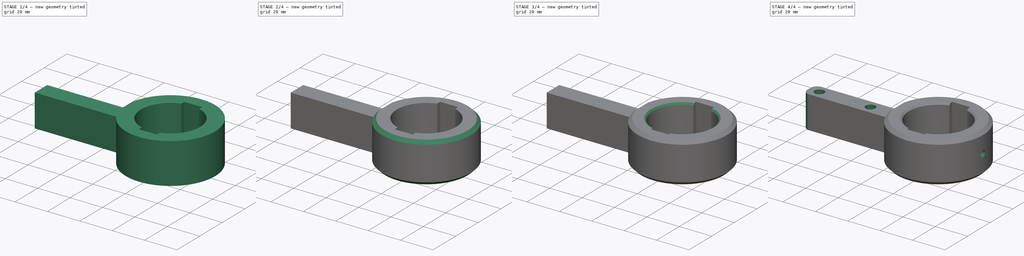
[diagram: build sequence overview — one tinted view per stage of 4, left to right]
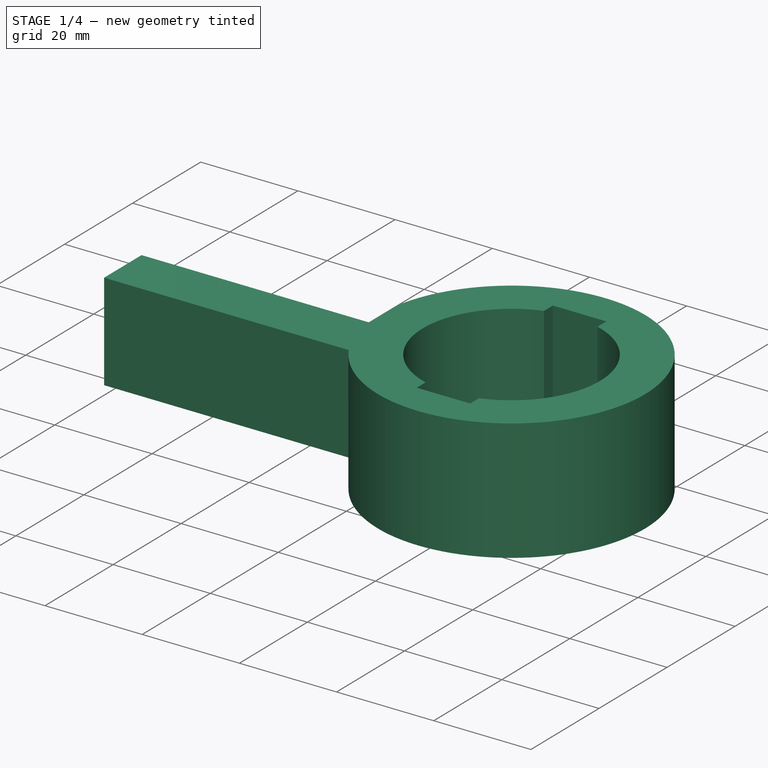
[diagram: stage 1 of 4 — iso view after this stage's code; geometry added in this stage tinted green]
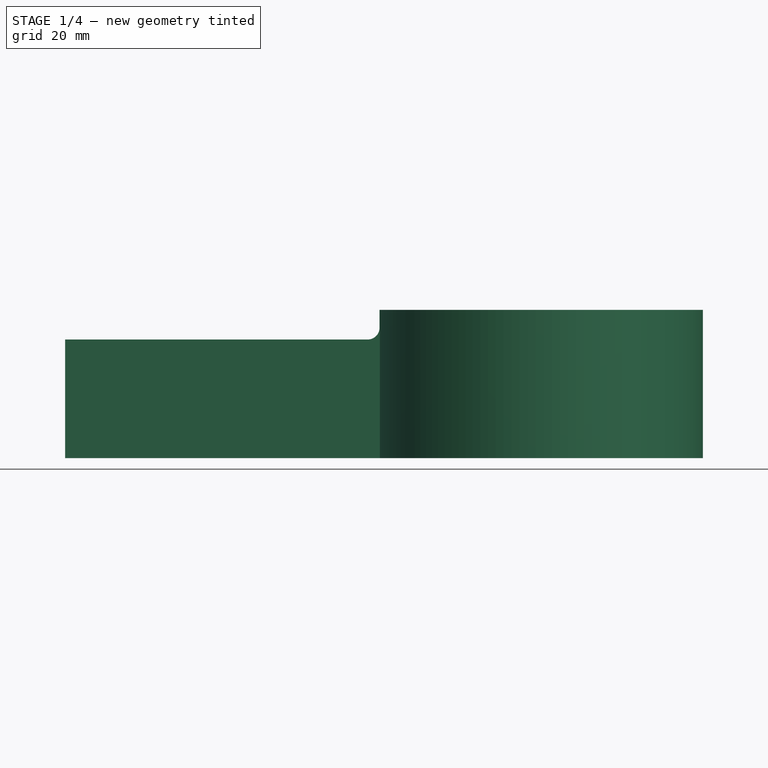
[diagram: stage 1 of 4 — front view after this stage's code; geometry added in this stage tinted green]
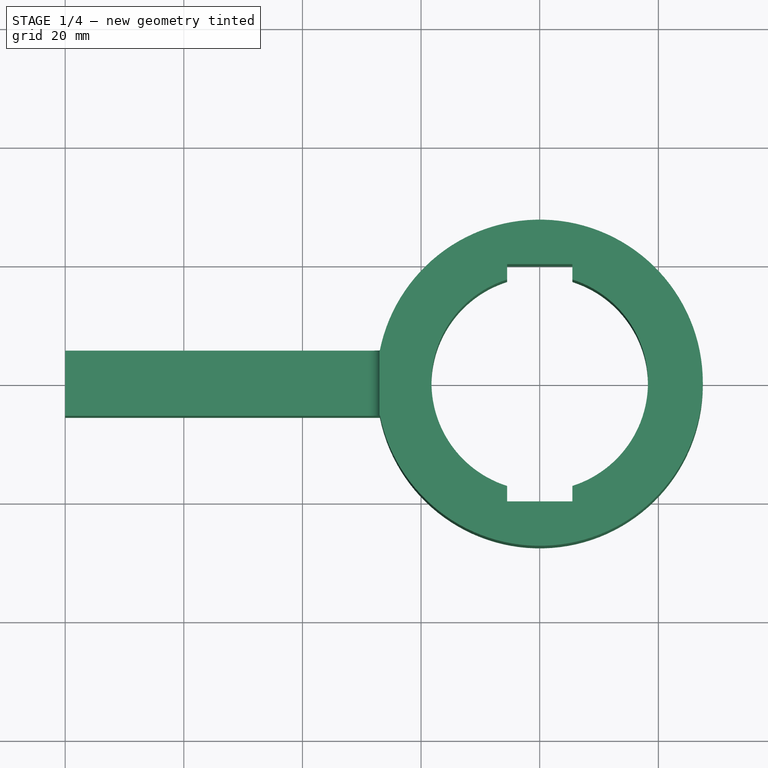
[diagram: stage 1 of 4 — top view after this stage's code; geometry added in this stage tinted green]
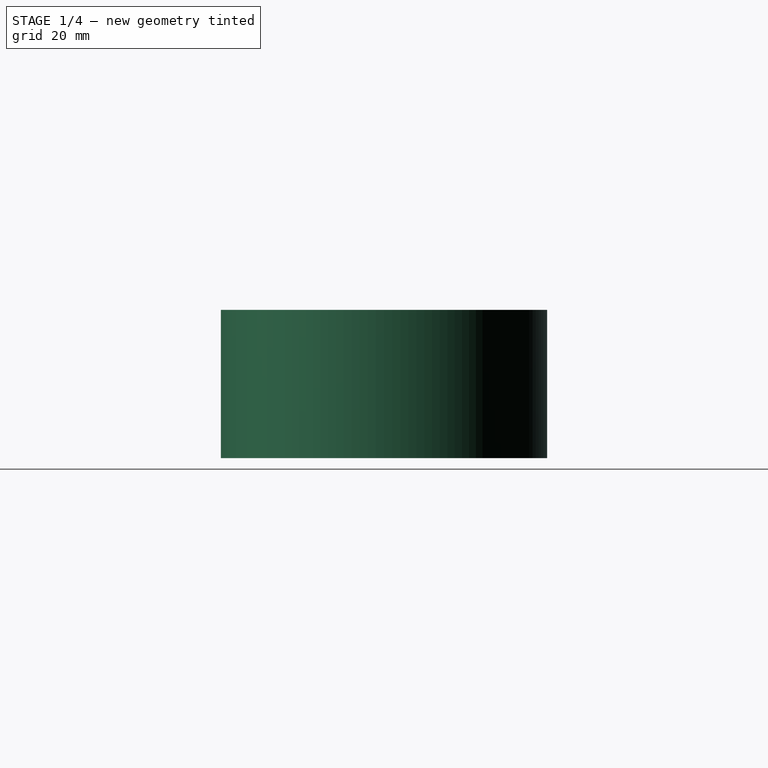
[diagram: stage 1 of 4 — right view after this stage's code; geometry added in this stage tinted green]
FCSTD DOCUMENT  (FreeCAD 0.19R24291 (Git))
Label: adapt_bullet_ip67_mount
License: All rights reserved
LicenseURL: http://en.wikipedia.org/wiki/All_rights_reserved
objects: PartDesign::Chamfer×5, Sketcher::SketchObject×4, PartDesign::Pocket×2, PartDesign::Fillet×2, PartDesign::Pad×1, PartDesign::Hole×1, PartDesign::Body×1
note: 27 computed .brp shape members not serialized (recipe doc carries the construction recipe); baked Part::Feature solids carry a one-line shape summary decoded from their .brp

FEATURE [Sketcher::SketchObject] Sketch
  FullyConstrained = true
  MapMode = 5
  Support = -> [XY_Plane]
  sketch-geometry (12):
    g0: LineSegment StartX=-80 StartY=5.5 StartZ=0 EndX=-26.9444 EndY=5.5 EndZ=0
    g1: LineSegment StartX=-26.9444 StartY=-5.5 StartZ=0 EndX=-80 EndY=-5.5 EndZ=0
    g2: LineSegment StartX=-80 StartY=-5.5 StartZ=0 EndX=-80 EndY=5.5 EndZ=0
    g3: ArcOfCircle CenterX=0 CenterY=0 CenterZ=0 NormalX=0 NormalY=0 NormalZ=1 AngleXU=0 Radius=27.5 StartAngle=3.34295 EndAngle=9.22342
    g4: ArcOfCircle CenterX=0 CenterY=0 CenterZ=0 NormalX=0 NormalY=0 NormalZ=1 AngleXU=0 Radius=18.25 StartAngle=1.87693 EndAngle=4.40626
    g5: LineSegment StartX=-5.5 StartY=20 StartZ=0 EndX=5.5 EndY=20 EndZ=0
    g6: LineSegment StartX=5.5 StartY=20 StartZ=0 EndX=5.5 EndY=17.4015 EndZ=0
    g7: LineSegment StartX=5.5 StartY=-20 StartZ=0 EndX=-5.5 EndY=-20 EndZ=0
    g8: LineSegment StartX=-5.5 StartY=-20 StartZ=0 EndX=-5.5 EndY=-17.4015 EndZ=0
    g9: LineSegment StartX=5.5 StartY=-17.4015 StartZ=0 EndX=5.5 EndY=-20 EndZ=0
    g10: LineSegment StartX=-5.5 StartY=17.4015 StartZ=0 EndX=-5.5 EndY=20 EndZ=0
    g11: ArcOfCircle CenterX=0 CenterY=0 CenterZ=0 NormalX=0 NormalY=0 NormalZ=1 AngleXU=0 Radius=18.25 StartAngle=5.01852 EndAngle=7.54785
  constraints (34):
    c: Coincident(g1,g2)
    c: Coincident(g2,g0)
    c: Horizontal(g0)
    c: Horizontal(g1)
    c: Vertical(g2)
    c: Coincident(g3,g-1)
    c: Coincident(g4,g3)
    c: Diameter(g3) = 55
    c: Diameter(g4) = 36.5
    c: DistanceX(g0,g3) = 80
    c: DistanceY(g1,g0) = 11
    c: DistanceY(g3,g0) = 5.5
    c: Coincident(g3,g1)
    c: Coincident(g3,g0)
    c: Coincident(g5,g6)
    c: Coincident(g9,g7)
    c: Coincident(g7,g8)
    c: Coincident(g10,g5)
    c: Horizontal(g5)
    c: Horizontal(g7)
    c: Vertical(g6)
    c: Vertical(g8)
    c: DistanceX(g5,g5) = 11
    c: DistanceX(g5,g3) = 5.5
    c: DistanceY(g9,g6) = 40
    c: DistanceY(g3,g5) = 20
    c: Tangent(g6,g9)
    c: Tangent(g8,g10)
    c: Coincident(g4,g10)
    c: Coincident(g11,g6)
    c: Equal(g4,g11)
    c: Coincident(g4,g8)
    c: Coincident(g11,g9)
    c: Coincident(g4,g11)
FEATURE [PartDesign::Pad] Pad
  Direction = (1,1,1)
  Length = 25
  Length2 = 100
  Profile = -> Sketch
  Type = 0
FEATURE [Sketcher::SketchObject] Sketch001
  FullyConstrained = true
  MapMode = 5
  Placement = pos=(0,0,0) rot=(1,0,0;1.5708rad)
  Support = -> [XZ_Plane]
  sketch-geometry (4):
    g0: LineSegment StartX=-82 StartY=32.84 StartZ=0 EndX=-27 EndY=32.84 EndZ=0
    g1: LineSegment StartX=-27 StartY=32.84 StartZ=0 EndX=-27 EndY=20 EndZ=0
    g2: LineSegment StartX=-27 StartY=20 StartZ=0 EndX=-82 EndY=20 EndZ=0
    g3: LineSegment StartX=-82 StartY=20 StartZ=0 EndX=-82 EndY=32.84 EndZ=0
  constraints (12):
    c: Coincident(g0,g1)
    c: Coincident(g1,g2)
    c: Coincident(g2,g3)
    c: Coincident(g3,g0)
    c: Horizontal(g0)
    c: Horizontal(g2)
    c: Vertical(g1)
    c: Vertical(g3)
    c: DistanceX(g0,g0) = 55
    c: DistanceX(g0,g-1) = 27
    c: DistanceY(g-1,g2) = 20
    c: DistanceY(g3,g3) = 12.84
FEATURE [PartDesign::Pocket] Pocket
  BaseFeature = -> Pad
  Length = 8
  Length2 = 8
  Profile = -> Sketch001
  Type = 4
FEATURE [PartDesign::Fillet] Fillet
  Base = -> Pocket [Edge21]
  BaseFeature = -> Pocket
  Radius = 2
  SupportTransform = false
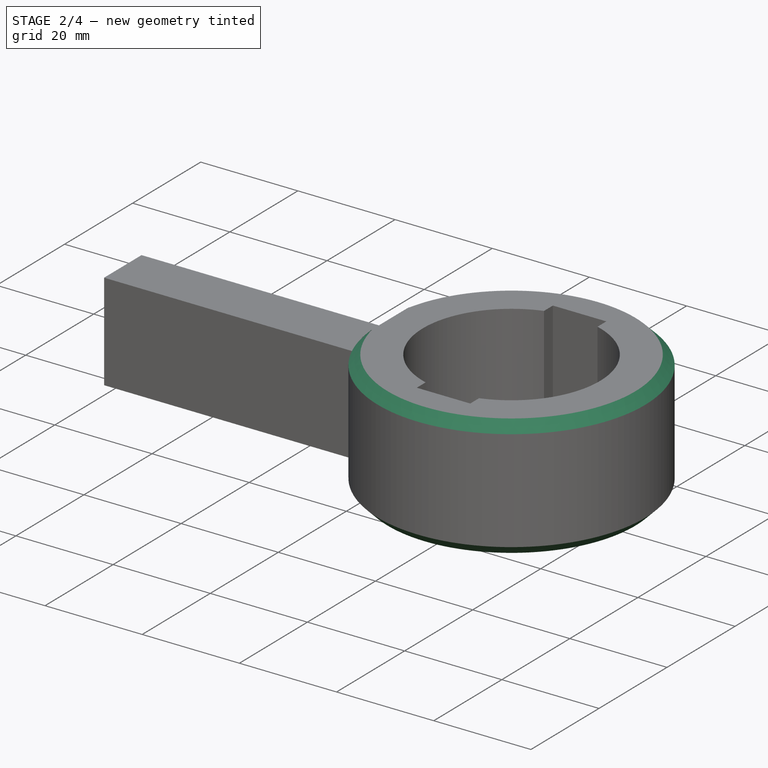
[diagram: stage 2 of 4 — iso view after this stage's code; geometry added in this stage tinted green]
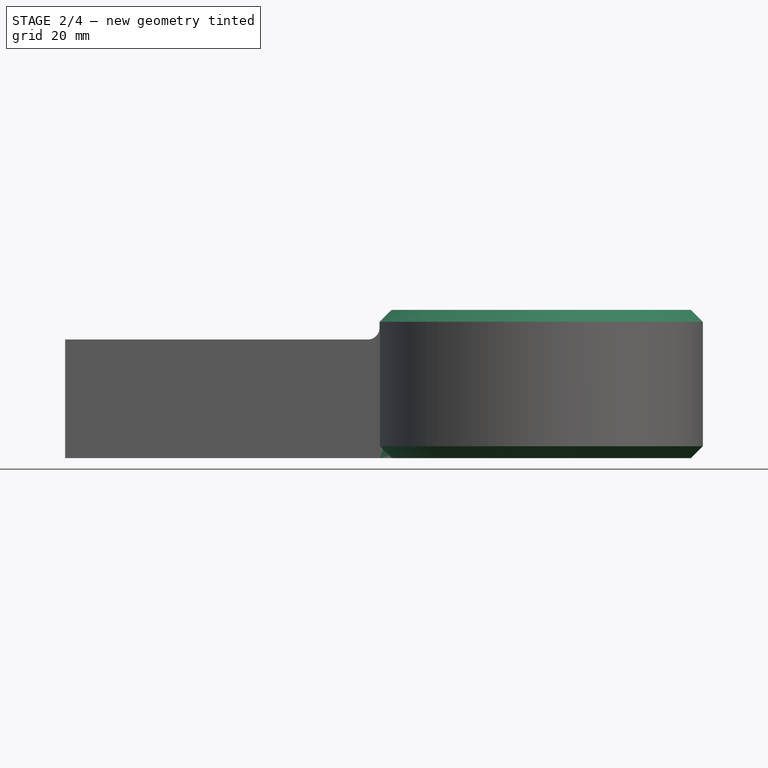
[diagram: stage 2 of 4 — front view after this stage's code; geometry added in this stage tinted green]
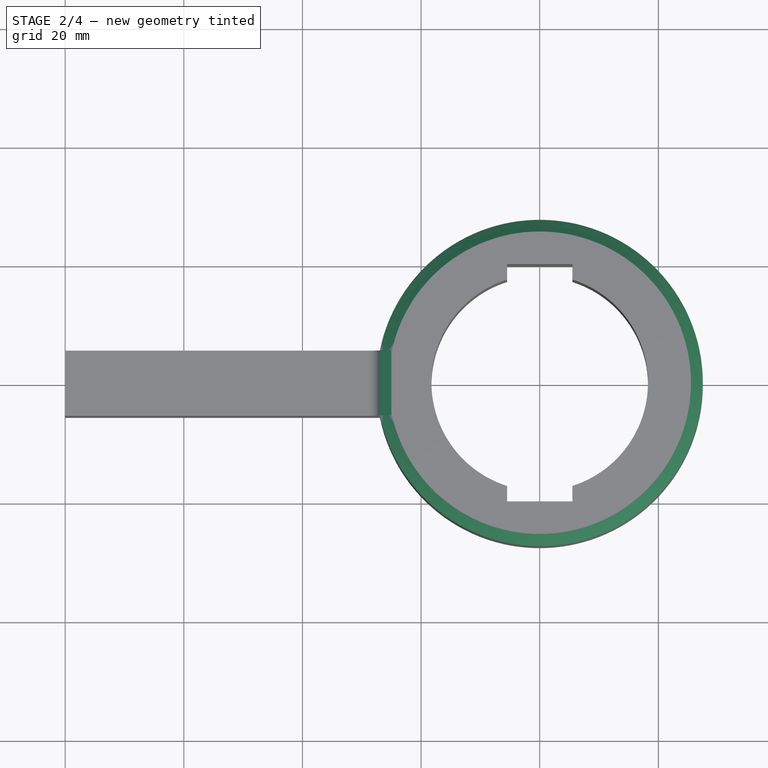
[diagram: stage 2 of 4 — top view after this stage's code; geometry added in this stage tinted green]
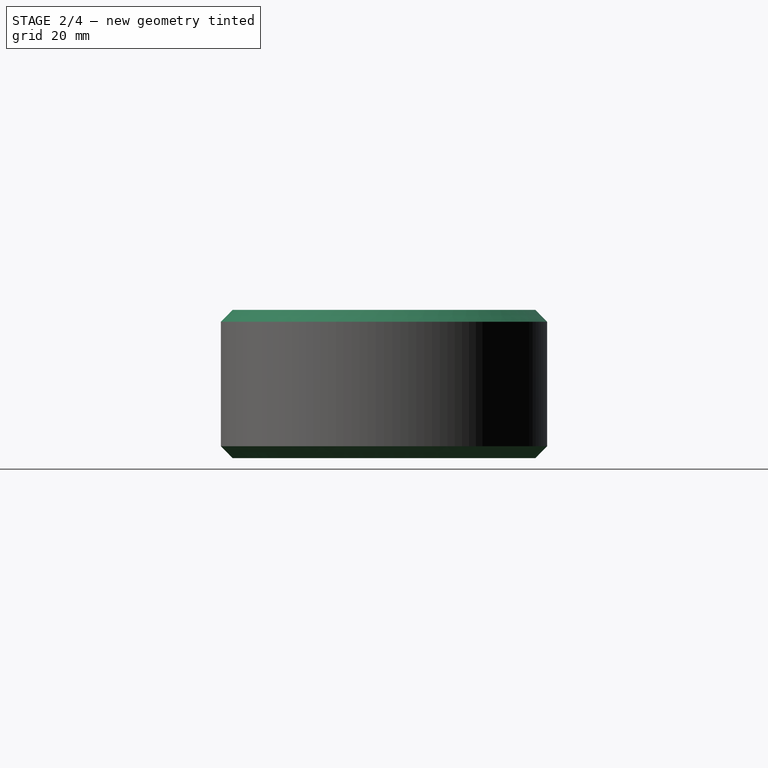
[diagram: stage 2 of 4 — right view after this stage's code; geometry added in this stage tinted green]
FEATURE [PartDesign::Chamfer] Chamfer
  Angle = 45
  Base = -> Fillet [Edge27]
  BaseFeature = -> Fillet
  ChamferType = 0
  FlipDirection = false
  Size = 2
  Size2 = 1
  SupportTransform = false
FEATURE [PartDesign::Chamfer] Chamfer001
  Angle = 45
  Base = -> Chamfer [Edge25]
  BaseFeature = -> Chamfer
  ChamferType = 0
  FlipDirection = false
  Size = 2
  Size2 = 1
  SupportTransform = false
FEATURE [PartDesign::Chamfer] Chamfer002
  Angle = 45
  Base = -> Chamfer001 [Edge27]
  BaseFeature = -> Chamfer001
  ChamferType = 0
  FlipDirection = false
  Size = 2
  Size2 = 1
  SupportTransform = false
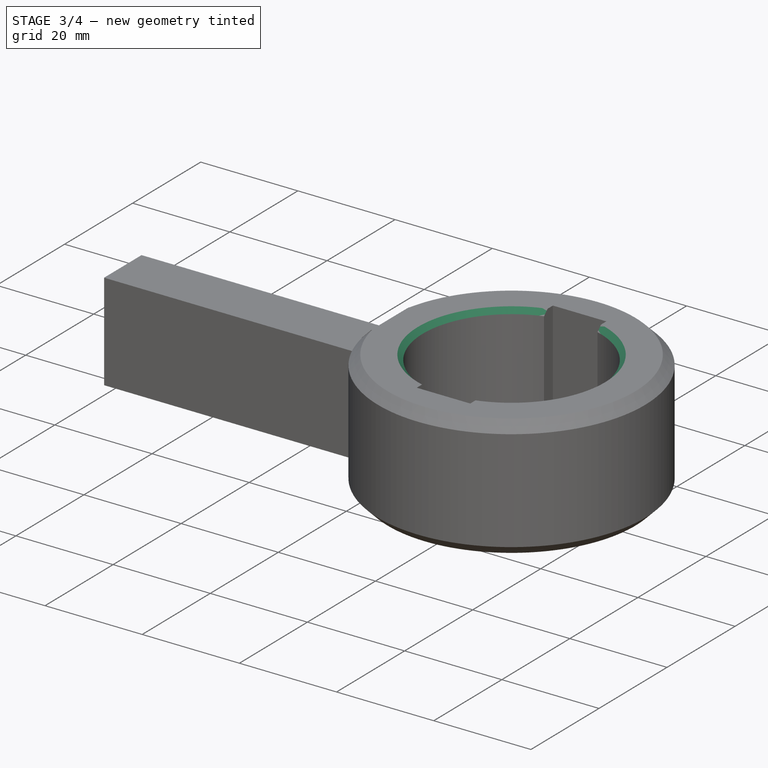
[diagram: stage 3 of 4 — iso view after this stage's code; geometry added in this stage tinted green]
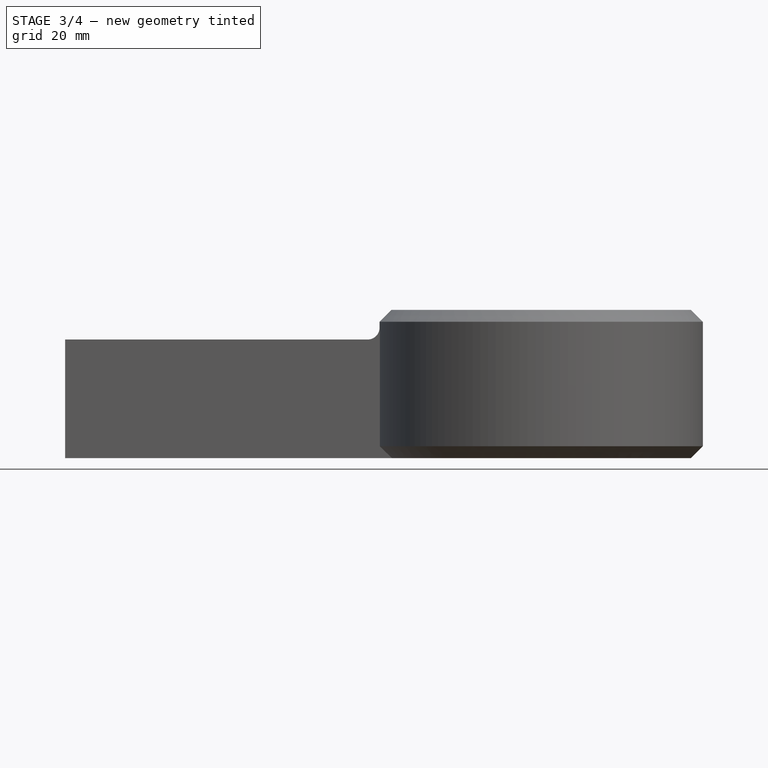
[diagram: stage 3 of 4 — front view after this stage's code; geometry added in this stage tinted green]
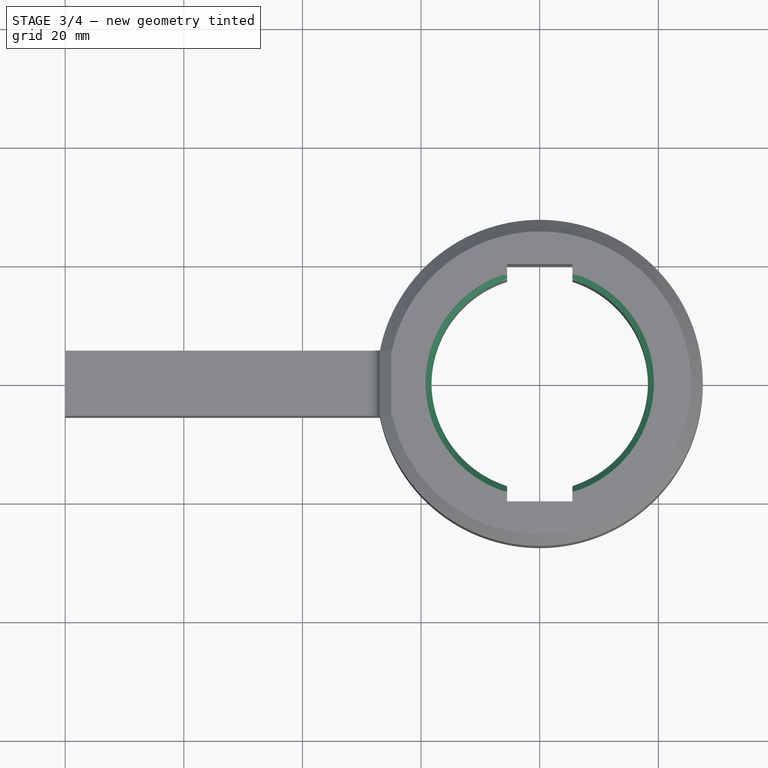
[diagram: stage 3 of 4 — top view after this stage's code; geometry added in this stage tinted green]
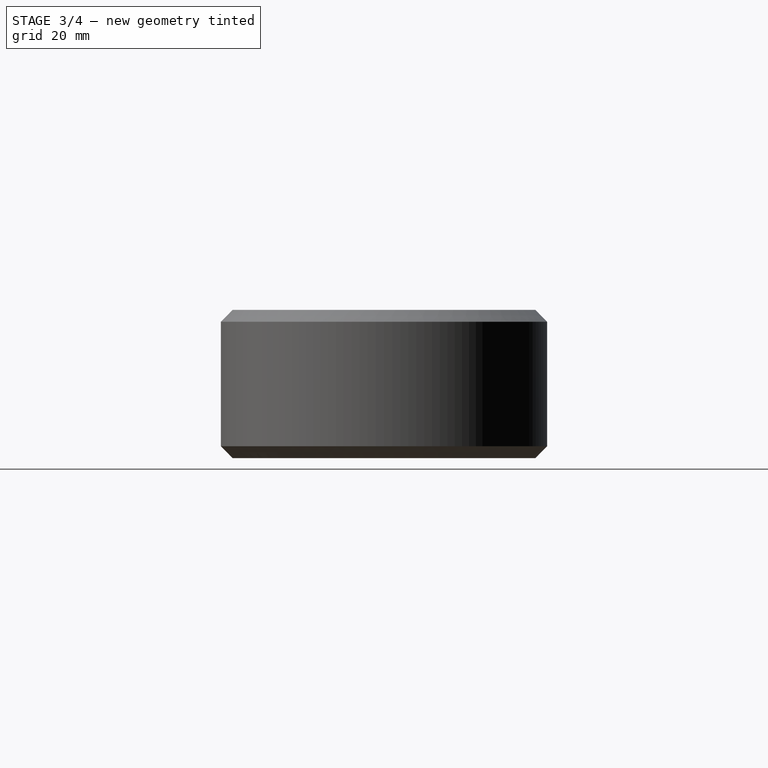
[diagram: stage 3 of 4 — right view after this stage's code; geometry added in this stage tinted green]
FEATURE [PartDesign::Chamfer] Chamfer003
  Angle = 45
  Base = -> Chamfer002 [Edge32,Edge39]
  BaseFeature = -> Chamfer002
  ChamferType = 0
  FlipDirection = false
  Size = 1
  Size2 = 1
  SupportTransform = false
FEATURE [PartDesign::Chamfer] Chamfer004
  Angle = 45
  Base = -> Chamfer003 [Edge55,Edge58]
  BaseFeature = -> Chamfer003
  ChamferType = 0
  FlipDirection = false
  Size = 1
  Size2 = 1
  SupportTransform = false
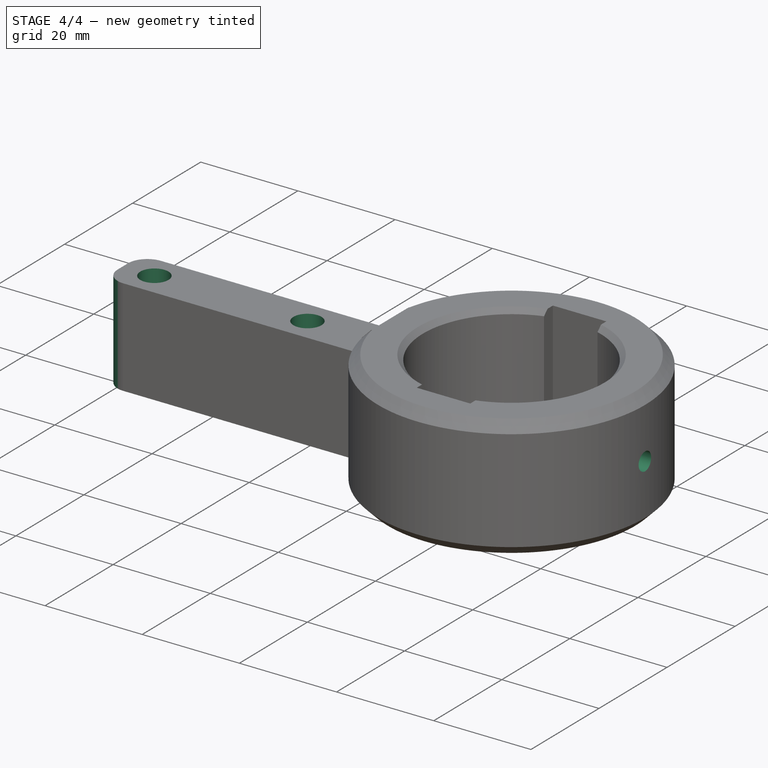
[diagram: stage 4 of 4 — iso view after this stage's code; geometry added in this stage tinted green]
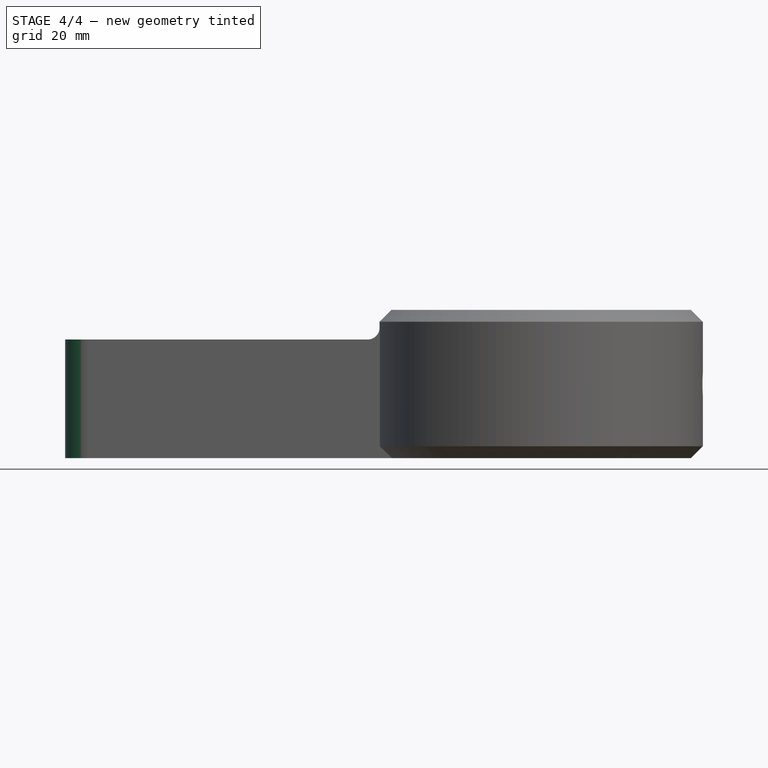
[diagram: stage 4 of 4 — front view after this stage's code; geometry added in this stage tinted green]
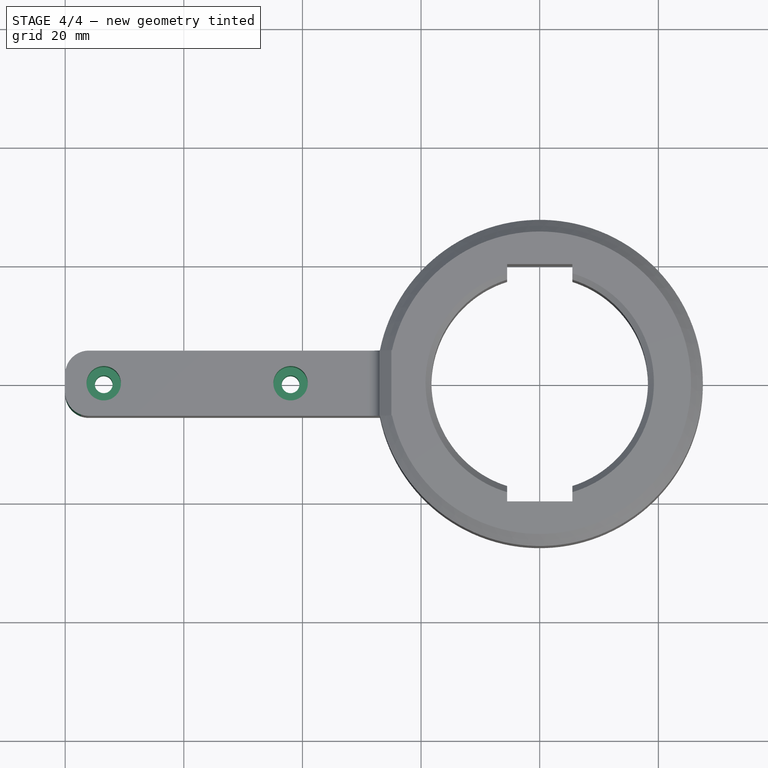
[diagram: stage 4 of 4 — top view after this stage's code; geometry added in this stage tinted green]
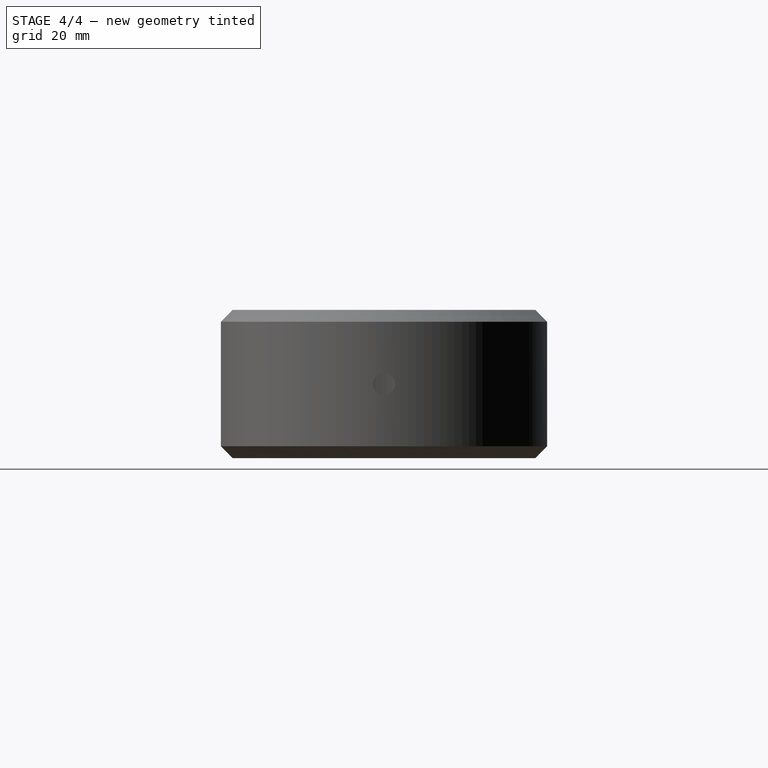
[diagram: stage 4 of 4 — right view after this stage's code; geometry added in this stage tinted green]
FEATURE [PartDesign::Fillet] Fillet001
  Base = -> Chamfer004 [Edge56,Edge50]
  BaseFeature = -> Chamfer004
  Radius = 4
  SupportTransform = false
FEATURE [Sketcher::SketchObject] Sketch002
  FullyConstrained = true
  MapMode = 5
  Placement = pos=(0,4.4e-15,20) rot=(0,0,1;0rad)
  Support = -> [Fillet001]
  sketch-geometry (2):
    g0: Circle CenterX=-42 CenterY=0 CenterZ=0 NormalX=0 NormalY=0 NormalZ=1 AngleXU=0 Radius=2.9
    g1: Circle CenterX=-73.5 CenterY=0 CenterZ=0 NormalX=0 NormalY=0 NormalZ=1 AngleXU=0 Radius=2.9
  constraints (6):
    c: PointOnObject(g0,g-1)
    c: PointOnObject(g1,g-1)
    c: Diameter(g0) = 5.8
    c: Equal(g1,g0)
    c: DistanceX(g0,g-1) = 42
    c: DistanceX(g1,g0) = 31.5
FEATURE [PartDesign::Hole] Hole
  BaseFeature = -> Fillet001
  Depth = 25
  DepthType = 1
  Diameter = 3
  DrillForDepth = false
  DrillPoint = 1
  DrillPointAngle = 118
  HoleCutCountersinkAngle = 90
  HoleCutCustomValues = false
  HoleCutDepth = 10
  HoleCutDiameter = 5.8
  HoleCutType = 1
  ModelActualThread = false
  Profile = -> Sketch002
  Tapered = false
  TaperedAngle = 90
  ThreadAngle = 0
  ThreadClass = 0
  ThreadCutOffInner = 0
  ThreadCutOffOuter = 0
  ThreadDirection = 0
  ThreadFit = 0
  ThreadPitch = 0
  ThreadSize = 0
  ThreadType = 0
  Threaded = false
FEATURE [Sketcher::SketchObject] Sketch003
  FullyConstrained = true
  MapMode = 5
  Placement = pos=(0,0,0) rot=(0.57735,0.57735,0.57735;2.0944rad)
  Support = -> [YZ_Plane]
  sketch-geometry (1):
    g0: Circle CenterX=0 CenterY=12.5 CenterZ=0 NormalX=0 NormalY=0 NormalZ=1 AngleXU=0 Radius=1.85
  constraints (3):
    c: PointOnObject(g0,g-2)
    c: Diameter(g0) = 3.7
    c: DistanceY(g-1,g0) = 12.5
FEATURE [PartDesign::Pocket] Pocket001
  BaseFeature = -> Hole
  Length = 5
  Length2 = 100
  Profile = -> Sketch003
  Reversed = true
  Type = 1
FEATURE [PartDesign::Body] Body
  Group = -> [Sketch,Pad,Sketch001,Pocket,Fillet,Chamfer,Chamfer001,Chamfer002,Chamfer003,Chamfer004,Fillet001,Sketch002,Hole,Sketch003,Pocket001]
  Origin = -> Origin
  Tip = -> Pocket001
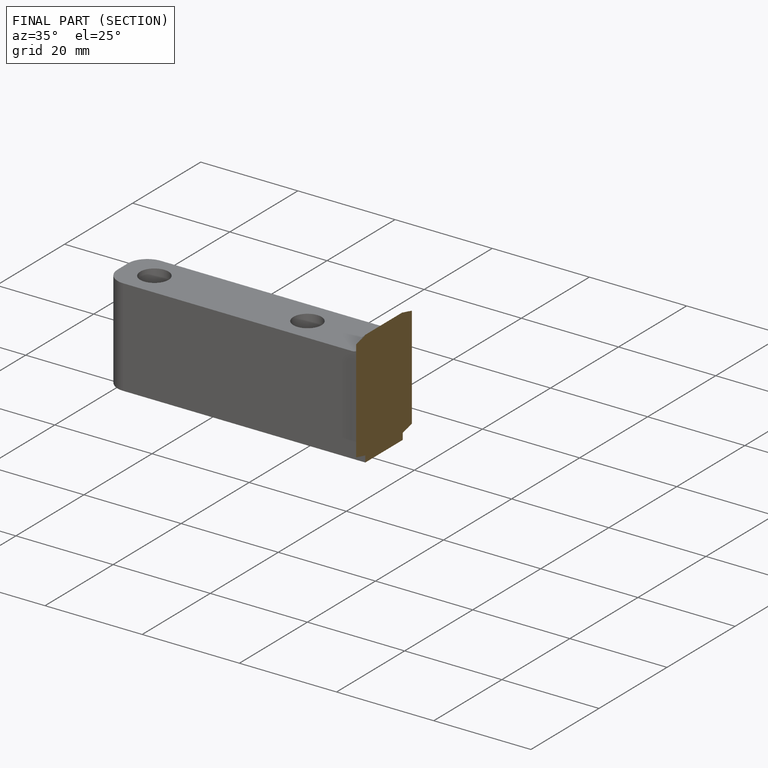
[diagram: finished part — half-section view (interior)]
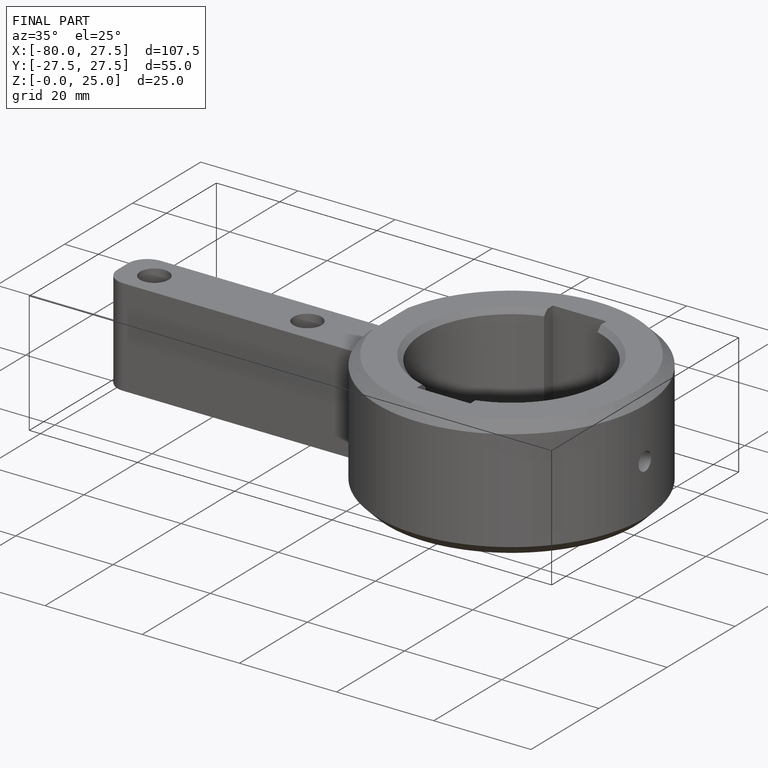
[diagram: finished part — iso view with bounding-box wireframe]
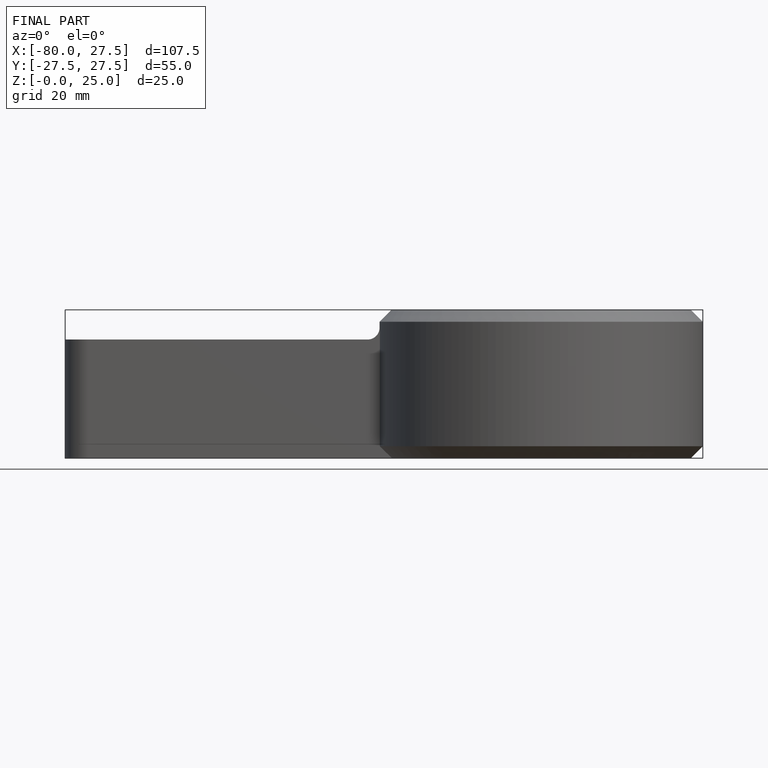
[diagram: finished part — front view with bounding-box wireframe]
